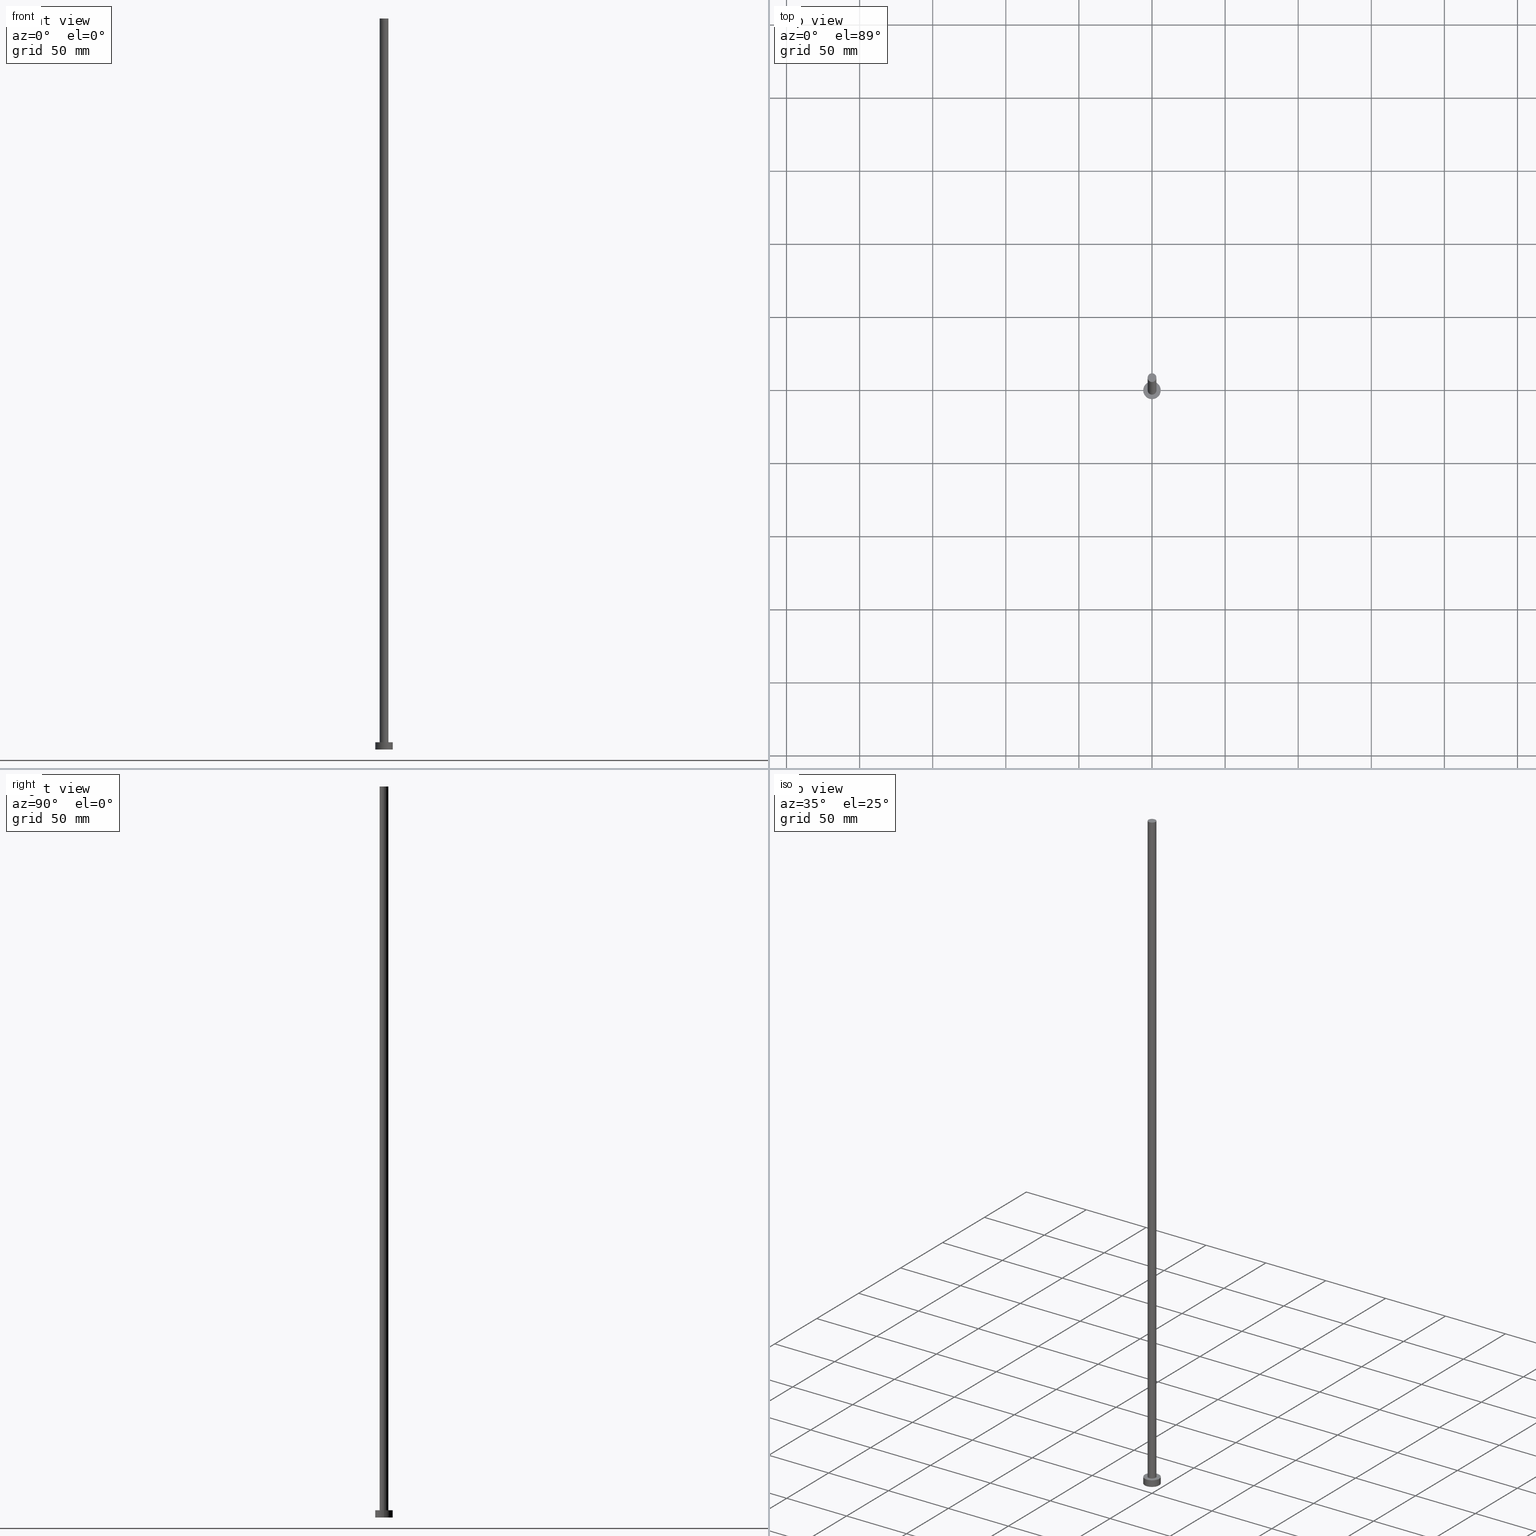
[diagram: canonical four-view strip — front | top / right | iso, engineering-drawing reading convention]
A machine part, canonical four-view strip (front | top / right | iso — engineering-drawing reading convention). The complete STEP part file that produces these views, byte-faithful:
ISO-10303-21;
HEADER;
FILE_DESCRIPTION (( 'STEP AP203' ),
    '1' );
FILE_NAME ('1156.STEP',
    '2023-02-13T15:44:19',
    ( '' ),
    ( '' ),
    'SwSTEP 2.0',
    'SolidWorks 2019',
    '' );
FILE_SCHEMA (( 'CONFIG_CONTROL_DESIGN' ));
ENDSEC;

DATA;
#1 = CLOSED_SHELL ( 'NONE', ( #10, #139, #55, #135, #172, #81, #231 ) ) ;
#2 = PERSON_AND_ORGANIZATION ( #235, #143 ) ;
#3 = PERSON_AND_ORGANIZATION_ROLE ( 'design_supplier' ) ;
#4 = VERTEX_POINT ( 'NONE', #57 ) ;
#5 = CARTESIAN_POINT ( 'NONE',  ( 0.000000000000000000, 0.000000000000000000, 5.000000000000000000 ) ) ;
#6 = FACE_OUTER_BOUND ( 'NONE', #40, .T. ) ;
#7 = AXIS2_PLACEMENT_3D ( 'NONE', #166, #214, #59 ) ;
#8 = ORIENTED_EDGE ( 'NONE', *, *, #72, .T. ) ;
#9 = AXIS2_PLACEMENT_3D ( 'NONE', #97, #31, #77 ) ;
#10 = ADVANCED_FACE ( 'NONE', ( #229 ), #130, .T. ) ;
#11 = DATE_AND_TIME ( #228, #127 ) ;
#12 = CYLINDRICAL_SURFACE ( 'NONE', #61, 6.000000000000000888 ) ;
#13 = CC_DESIGN_SECURITY_CLASSIFICATION ( #240, ( #27 ) ) ;
#14 = EDGE_CURVE ( 'NONE', #4, #248, #201, .T. ) ;
#15 = APPROVAL_STATUS ( 'not_yet_approved' ) ;
#16 = CARTESIAN_POINT ( 'NONE',  ( 0.000000000000000000, 0.000000000000000000, 500.0000000000000000 ) ) ;
#17 = COORDINATED_UNIVERSAL_TIME_OFFSET ( 1, 0, .AHEAD. ) ;
#18 = CC_DESIGN_DATE_AND_TIME_ASSIGNMENT ( #83, #164, ( #240 ) ) ;
#19 = AXIS2_PLACEMENT_3D ( 'NONE', #5, #117, #180 ) ;
#20 = SECURITY_CLASSIFICATION_LEVEL ( 'unclassified' ) ;
#21 = DIRECTION ( 'NONE',  ( -0.000000000000000000, -0.000000000000000000, -1.000000000000000000 ) ) ;
#22 = CARTESIAN_POINT ( 'NONE',  ( 0.000000000000000000, 0.000000000000000000, 5.000000000000000000 ) ) ;
#23 = MANIFOLD_SOLID_BREP ( 'P�idat vysunut�m3', #1 ) ;
#24 = APPROVAL_PERSON_ORGANIZATION ( #146, #87, #254 ) ;
#25 = DIRECTION ( 'NONE',  ( 0.000000000000000000, 0.000000000000000000, 1.000000000000000000 ) ) ;
#26 = ORIENTED_EDGE ( 'NONE', *, *, #230, .F. ) ;
#27 = PRODUCT_DEFINITION_FORMATION_WITH_SPECIFIED_SOURCE ( 'LIBOVOLN�', '', #236, .NOT_KNOWN. ) ;
#28 = APPLICATION_CONTEXT ( 'configuration controlled 3d designs of mechanical parts and assemblies' ) ;
#29 = AXIS2_PLACEMENT_3D ( 'NONE', #22, #199, #220 ) ;
#30 = APPROVAL_DATE_TIME ( #185, #249 ) ;
#31 = DIRECTION ( 'NONE',  ( 0.000000000000000000, 0.000000000000000000, 1.000000000000000000 ) ) ;
#32 = COORDINATED_UNIVERSAL_TIME_OFFSET ( 1, 0, .AHEAD. ) ;
#33 = APPROVAL_ROLE ( '' ) ;
#34 = ORIENTED_EDGE ( 'NONE', *, *, #49, .T. ) ;
#35 = DATE_TIME_ROLE ( 'creation_date' ) ;
#36 = EDGE_CURVE ( 'NONE', #207, #227, #147, .T. ) ;
#37 = ORIENTED_EDGE ( 'NONE', *, *, #107, .T. ) ;
#38 = APPROVAL_STATUS ( 'not_yet_approved' ) ;
#39 = AXIS2_PLACEMENT_3D ( 'NONE', #243, #65, #131 ) ;
#40 = EDGE_LOOP ( 'NONE', ( #140, #202, #93, #184 ) ) ;
#41 = CARTESIAN_POINT ( 'NONE',  ( -3.000000000000000444, 0.000000000000000000, 5.000000000000000000 ) ) ;
#42 = PRODUCT_DEFINITION_SHAPE ( 'NONE', 'NONE',  #89 ) ;
#43 = ORIENTED_EDGE ( 'NONE', *, *, #154, .T. ) ;
#44 = DIRECTION ( 'NONE',  ( -0.000000000000000000, -0.000000000000000000, -1.000000000000000000 ) ) ;
#45 = CARTESIAN_POINT ( 'NONE',  ( 3.000000000000000444, 3.673940397442060361E-16, 5.000000000000000000 ) ) ;
#46 = DESIGN_CONTEXT ( 'detailed design', #28, 'design' ) ;
#47 = AXIS2_PLACEMENT_3D ( 'NONE', #122, #157, #211 ) ;
#48 = DIRECTION ( 'NONE',  ( -0.000000000000000000, -0.000000000000000000, -1.000000000000000000 ) ) ;
#49 = EDGE_CURVE ( 'NONE', #244, #144, #173, .T. ) ;
#50 = ORIENTED_EDGE ( 'NONE', *, *, #200, .T. ) ;
#51 = APPROVAL_STATUS ( 'not_yet_approved' ) ;
#52 =( LENGTH_UNIT ( ) NAMED_UNIT ( * ) SI_UNIT ( .MILLI., .METRE. ) );
#53 = APPROVAL_DATE_TIME ( #79, #87 ) ;
#54 = LOCAL_TIME ( 16, 44, 19.00000000000000000, #58 ) ;
#55 = ADVANCED_FACE ( 'NONE', ( #222 ), #12, .T. ) ;
#56 = ORIENTED_EDGE ( 'NONE', *, *, #14, .T. ) ;
#57 = CARTESIAN_POINT ( 'NONE',  ( 6.000000000000000888, 7.347880794884120722E-16, 5.000000000000000000 ) ) ;
#58 = COORDINATED_UNIVERSAL_TIME_OFFSET ( 1, 0, .AHEAD. ) ;
#59 = DIRECTION ( 'NONE',  ( 1.000000000000000000, 0.000000000000000000, -0.000000000000000000 ) ) ;
#60 = FACE_BOUND ( 'NONE', #88, .T. ) ;
#61 = AXIS2_PLACEMENT_3D ( 'NONE', #208, #48, #99 ) ;
#62 = EDGE_LOOP ( 'NONE', ( #111, #50, #213, #198 ) ) ;
#63 = CIRCLE ( 'NONE', #223, 6.000000000000000888 ) ;
#64 = DIRECTION ( 'NONE',  ( 0.000000000000000000, 0.000000000000000000, 1.000000000000000000 ) ) ;
#65 = DIRECTION ( 'NONE',  ( -0.000000000000000000, -0.000000000000000000, -1.000000000000000000 ) ) ;
#66 = EDGE_CURVE ( 'NONE', #182, #144, #221, .T. ) ;
#67 = CYLINDRICAL_SURFACE ( 'NONE', #86, 3.000000000000000444 ) ;
#68 = VECTOR ( 'NONE', #44, 1000.000000000000000 ) ;
#69 = APPROVAL ( #38, 'NEUR�EN�' ) ;
#70 = DIRECTION ( 'NONE',  ( 1.000000000000000000, 0.000000000000000000, 0.000000000000000000 ) ) ;
#71 = EDGE_LOOP ( 'NONE', ( #163, #152, #170, #8 ) ) ;
#72 = EDGE_CURVE ( 'NONE', #227, #207, #242, .T. ) ;
#73 =( GEOMETRIC_REPRESENTATION_CONTEXT ( 3 ) GLOBAL_UNCERTAINTY_ASSIGNED_CONTEXT ( ( #158 ) ) GLOBAL_UNIT_ASSIGNED_CONTEXT ( ( #52, #124, #103 ) ) REPRESENTATION_CONTEXT ( 'NONE', 'WORKASPACE' ) );
#74 = DIRECTION ( 'NONE',  ( 0.000000000000000000, 0.000000000000000000, 1.000000000000000000 ) ) ;
#75 = CARTESIAN_POINT ( 'NONE',  ( 0.000000000000000000, 0.000000000000000000, 500.0000000000000000 ) ) ;
#76 = CALENDAR_DATE ( 2023, 13, 2 ) ;
#77 = DIRECTION ( 'NONE',  ( 1.000000000000000000, 0.000000000000000000, 0.000000000000000000 ) ) ;
#78 = DIRECTION ( 'NONE',  ( 1.000000000000000000, 0.000000000000000000, -0.000000000000000000 ) ) ;
#79 = DATE_AND_TIME ( #106, #54 ) ;
#80 = ADVANCED_BREP_SHAPE_REPRESENTATION ( '1156', ( #23, #9 ), #73 ) ;
#81 = ADVANCED_FACE ( 'NONE', ( #6 ), #67, .T. ) ;
#82 = DIRECTION ( 'NONE',  ( 0.000000000000000000, 0.000000000000000000, 1.000000000000000000 ) ) ;
#83 = DATE_AND_TIME ( #190, #159 ) ;
#84 = EDGE_LOOP ( 'NONE', ( #193, #34, #186, #245 ) ) ;
#85 = CARTESIAN_POINT ( 'NONE',  ( 3.000000000000000444, 3.673940397442060361E-16, 500.0000000000000000 ) ) ;
#86 = AXIS2_PLACEMENT_3D ( 'NONE', #246, #203, #133 ) ;
#87 = APPROVAL ( #15, 'NEUR�EN�' ) ;
#88 = EDGE_LOOP ( 'NONE', ( #100, #26 ) ) ;
#89 = PRODUCT_DEFINITION ( 'NEZN�M�', '', #27, #46 ) ;
#90 = ORIENTED_EDGE ( 'NONE', *, *, #36, .F. ) ;
#91 = DIRECTION ( 'NONE',  ( 0.000000000000000000, 0.000000000000000000, 1.000000000000000000 ) ) ;
#92 = DIRECTION ( 'NONE',  ( 1.000000000000000000, 0.000000000000000000, 0.000000000000000000 ) ) ;
#93 = ORIENTED_EDGE ( 'NONE', *, *, #119, .T. ) ;
#94 = CALENDAR_DATE ( 2023, 13, 2 ) ;
#95 = PERSON_AND_ORGANIZATION ( #235, #143 ) ;
#96 = CIRCLE ( 'NONE', #216, 3.000000000000000444 ) ;
#97 = CARTESIAN_POINT ( 'NONE',  ( 0.000000000000000000, 0.000000000000000000, 0.000000000000000000 ) ) ;
#98 = AXIS2_PLACEMENT_3D ( 'NONE', #206, #187, #78 ) ;
#99 = DIRECTION ( 'NONE',  ( -1.000000000000000000, 0.000000000000000000, 0.000000000000000000 ) ) ;
#100 = ORIENTED_EDGE ( 'NONE', *, *, #66, .F. ) ;
#101 = APPLICATION_PROTOCOL_DEFINITION ( 'international standard', 'config_control_design', 1994, #28 ) ;
#102 = CC_DESIGN_PERSON_AND_ORGANIZATION_ASSIGNMENT ( #212, #183, ( #240 ) ) ;
#103 =( NAMED_UNIT ( * ) SI_UNIT ( $, .STERADIAN. ) SOLID_ANGLE_UNIT ( ) );
#104 = PERSON_AND_ORGANIZATION_ROLE ( 'creator' ) ;
#105 = LOCAL_TIME ( 16, 44, 19.00000000000000000, #32 ) ;
#106 = CALENDAR_DATE ( 2023, 13, 2 ) ;
#107 = EDGE_CURVE ( 'NONE', #244, #238, #210, .T. ) ;
#108 = DIRECTION ( 'NONE',  ( -0.000000000000000000, -0.000000000000000000, -1.000000000000000000 ) ) ;
#109 = CARTESIAN_POINT ( 'NONE',  ( 0.000000000000000000, 0.000000000000000000, 0.000000000000000000 ) ) ;
#110 = CARTESIAN_POINT ( 'NONE',  ( 0.000000000000000000, 0.000000000000000000, 5.000000000000000000 ) ) ;
#111 = ORIENTED_EDGE ( 'NONE', *, *, #14, .F. ) ;
#112 = CC_DESIGN_APPROVAL ( #69, ( #27 ) ) ;
#113 = DIRECTION ( 'NONE',  ( 1.000000000000000000, 0.000000000000000000, 0.000000000000000000 ) ) ;
#114 = EDGE_CURVE ( 'NONE', #248, #227, #167, .T. ) ;
#115 = DIRECTION ( 'NONE',  ( 1.000000000000000000, 0.000000000000000000, 0.000000000000000000 ) ) ;
#116 = VECTOR ( 'NONE', #108, 1000.000000000000000 ) ;
#117 = DIRECTION ( 'NONE',  ( 0.000000000000000000, 0.000000000000000000, 1.000000000000000000 ) ) ;
#118 = MECHANICAL_CONTEXT ( 'NONE', #197, 'mechanical' ) ;
#119 = EDGE_CURVE ( 'NONE', #238, #182, #241, .T. ) ;
#120 = FACE_OUTER_BOUND ( 'NONE', #251, .T. ) ;
#121 = AXIS2_PLACEMENT_3D ( 'NONE', #168, #64, #70 ) ;
#122 = CARTESIAN_POINT ( 'NONE',  ( 0.000000000000000000, 0.000000000000000000, 5.000000000000000000 ) ) ;
#123 = APPROVAL_DATE_TIME ( #11, #69 ) ;
#124 =( NAMED_UNIT ( * ) PLANE_ANGLE_UNIT ( ) SI_UNIT ( $, .RADIAN. ) );
#125 = PERSON_AND_ORGANIZATION ( #235, #143 ) ;
#126 = PERSON_AND_ORGANIZATION ( #235, #143 ) ;
#127 = LOCAL_TIME ( 16, 44, 19.00000000000000000, #194 ) ;
#128 = CARTESIAN_POINT ( 'NONE',  ( -3.000000000000000444, 0.000000000000000000, 500.0000000000000000 ) ) ;
#129 = FACE_OUTER_BOUND ( 'NONE', #234, .T. ) ;
#130 = CYLINDRICAL_SURFACE ( 'NONE', #39, 3.000000000000000444 ) ;
#131 = DIRECTION ( 'NONE',  ( -1.000000000000000000, 0.000000000000000000, 0.000000000000000000 ) ) ;
#132 = APPROVAL_PERSON_ORGANIZATION ( #160, #249, #141 ) ;
#133 = DIRECTION ( 'NONE',  ( -1.000000000000000000, 0.000000000000000000, 0.000000000000000000 ) ) ;
#134 = DIRECTION ( 'NONE',  ( 0.000000000000000000, 0.000000000000000000, 1.000000000000000000 ) ) ;
#135 = ADVANCED_FACE ( 'NONE', ( #60, #129 ), #171, .T. ) ;
#136 = APPROVAL_PERSON_ORGANIZATION ( #125, #69, #33 ) ;
#137 = CARTESIAN_POINT ( 'NONE',  ( 6.000000000000000888, 7.347880794884120722E-16, 0.000000000000000000 ) ) ;
#138 = DIRECTION ( 'NONE',  ( -0.000000000000000000, -0.000000000000000000, -1.000000000000000000 ) ) ;
#139 = ADVANCED_FACE ( 'NONE', ( #150 ), #225, .T. ) ;
#140 = ORIENTED_EDGE ( 'NONE', *, *, #49, .F. ) ;
#141 = APPROVAL_ROLE ( '' ) ;
#142 = DATE_AND_TIME ( #76, #218 ) ;
#143 = ORGANIZATION ( 'NEUR�EN�', 'NEUR�EN�', '' ) ;
#144 = VERTEX_POINT ( 'NONE', #45 ) ;
#145 = PERSON_AND_ORGANIZATION_ROLE ( 'design_owner' ) ;
#146 = PERSON_AND_ORGANIZATION ( #235, #143 ) ;
#147 = CIRCLE ( 'NONE', #181, 6.000000000000000888 ) ;
#148 = CIRCLE ( 'NONE', #237, 3.000000000000000444 ) ;
#149 = CARTESIAN_POINT ( 'NONE',  ( 0.000000000000000000, 0.000000000000000000, 0.000000000000000000 ) ) ;
#150 = FACE_OUTER_BOUND ( 'NONE', #62, .T. ) ;
#151 = APPLICATION_PROTOCOL_DEFINITION ( 'international standard', 'config_control_design', 1994, #197 ) ;
#152 = ORIENTED_EDGE ( 'NONE', *, *, #154, .F. ) ;
#153 = EDGE_LOOP ( 'NONE', ( #250, #90 ) ) ;
#154 = EDGE_CURVE ( 'NONE', #248, #4, #63, .T. ) ;
#155 = CARTESIAN_POINT ( 'NONE',  ( 0.000000000000000000, 0.000000000000000000, 5.000000000000000000 ) ) ;
#156 = DIRECTION ( 'NONE',  ( 0.000000000000000000, 0.000000000000000000, 1.000000000000000000 ) ) ;
#157 = DIRECTION ( 'NONE',  ( -0.000000000000000000, -0.000000000000000000, -1.000000000000000000 ) ) ;
#158 = UNCERTAINTY_MEASURE_WITH_UNIT (LENGTH_MEASURE( 1.000000000000000082E-05 ), #52, 'distance_accuracy_value', 'NONE');
#159 = LOCAL_TIME ( 16, 44, 19.00000000000000000, #17 ) ;
#160 = PERSON_AND_ORGANIZATION ( #235, #143 ) ;
#161 = COORDINATED_UNIVERSAL_TIME_OFFSET ( 1, 0, .AHEAD. ) ;
#162 = CC_DESIGN_APPROVAL ( #249, ( #240 ) ) ;
#163 = ORIENTED_EDGE ( 'NONE', *, *, #200, .F. ) ;
#164 = DATE_TIME_ROLE ( 'classification_date' ) ;
#165 = CC_DESIGN_DATE_AND_TIME_ASSIGNMENT ( #142, #35, ( #89 ) ) ;
#166 = CARTESIAN_POINT ( 'NONE',  ( 0.000000000000000000, 0.000000000000000000, 0.000000000000000000 ) ) ;
#167 = LINE ( 'NONE', #215, #217 ) ;
#168 = CARTESIAN_POINT ( 'NONE',  ( 0.000000000000000000, 0.000000000000000000, 5.000000000000000000 ) ) ;
#169 = CC_DESIGN_PERSON_AND_ORGANIZATION_ASSIGNMENT ( #188, #104, ( #27 ) ) ;
#170 = ORIENTED_EDGE ( 'NONE', *, *, #114, .T. ) ;
#171 = PLANE ( 'NONE',  #19 ) ;
#172 = ADVANCED_FACE ( 'NONE', ( #189 ), #191, .F. ) ;
#173 = LINE ( 'NONE', #247, #68 ) ;
#174 = AXIS2_PLACEMENT_3D ( 'NONE', #149, #25, #232 ) ;
#175 = SHAPE_DEFINITION_REPRESENTATION ( #42, #80 ) ;
#176 = CC_DESIGN_PERSON_AND_ORGANIZATION_ASSIGNMENT ( #95, #145, ( #236 ) ) ;
#177 = CARTESIAN_POINT ( 'NONE',  ( -6.000000000000000888, 0.000000000000000000, 5.000000000000000000 ) ) ;
#178 = VECTOR ( 'NONE', #138, 1000.000000000000000 ) ;
#179 = CARTESIAN_POINT ( 'NONE',  ( 6.000000000000000888, 7.347880794884120722E-16, 5.000000000000000000 ) ) ;
#180 = DIRECTION ( 'NONE',  ( 1.000000000000000000, 0.000000000000000000, -0.000000000000000000 ) ) ;
#181 = AXIS2_PLACEMENT_3D ( 'NONE', #109, #91, #92 ) ;
#182 = VERTEX_POINT ( 'NONE', #41 ) ;
#183 = PERSON_AND_ORGANIZATION_ROLE ( 'classification_officer' ) ;
#184 = ORIENTED_EDGE ( 'NONE', *, *, #66, .T. ) ;
#185 = DATE_AND_TIME ( #94, #105 ) ;
#186 = ORIENTED_EDGE ( 'NONE', *, *, #230, .T. ) ;
#187 = DIRECTION ( 'NONE',  ( 0.000000000000000000, 0.000000000000000000, 1.000000000000000000 ) ) ;
#188 = PERSON_AND_ORGANIZATION ( #235, #143 ) ;
#189 = FACE_OUTER_BOUND ( 'NONE', #153, .T. ) ;
#190 = CALENDAR_DATE ( 2023, 13, 2 ) ;
#191 = PLANE ( 'NONE',  #7 ) ;
#192 = CC_DESIGN_APPROVAL ( #87, ( #89 ) ) ;
#193 = ORIENTED_EDGE ( 'NONE', *, *, #107, .F. ) ;
#194 = COORDINATED_UNIVERSAL_TIME_OFFSET ( 1, 0, .AHEAD. ) ;
#195 = CARTESIAN_POINT ( 'NONE',  ( -3.000000000000000444, 0.000000000000000000, 500.0000000000000000 ) ) ;
#196 = PRODUCT_RELATED_PRODUCT_CATEGORY ( 'detail', '', ( #236 ) ) ;
#197 = APPLICATION_CONTEXT ( 'configuration controlled 3d designs of mechanical parts and assemblies' ) ;
#198 = ORIENTED_EDGE ( 'NONE', *, *, #114, .F. ) ;
#199 = DIRECTION ( 'NONE',  ( 0.000000000000000000, 0.000000000000000000, 1.000000000000000000 ) ) ;
#200 = EDGE_CURVE ( 'NONE', #4, #207, #252, .T. ) ;
#201 = CIRCLE ( 'NONE', #29, 6.000000000000000888 ) ;
#202 = ORIENTED_EDGE ( 'NONE', *, *, #239, .F. ) ;
#203 = DIRECTION ( 'NONE',  ( -0.000000000000000000, -0.000000000000000000, -1.000000000000000000 ) ) ;
#204 = CARTESIAN_POINT ( 'NONE',  ( -6.000000000000000888, 0.000000000000000000, 0.000000000000000000 ) ) ;
#205 = CC_DESIGN_PERSON_AND_ORGANIZATION_ASSIGNMENT ( #126, #3, ( #27 ) ) ;
#206 = CARTESIAN_POINT ( 'NONE',  ( 0.000000000000000000, 0.000000000000000000, 500.0000000000000000 ) ) ;
#207 = VERTEX_POINT ( 'NONE', #137 ) ;
#208 = CARTESIAN_POINT ( 'NONE',  ( 0.000000000000000000, 0.000000000000000000, 5.000000000000000000 ) ) ;
#209 = ORIENTED_EDGE ( 'NONE', *, *, #239, .T. ) ;
#210 = CIRCLE ( 'NONE', #233, 3.000000000000000444 ) ;
#211 = DIRECTION ( 'NONE',  ( -1.000000000000000000, 0.000000000000000000, 0.000000000000000000 ) ) ;
#212 = PERSON_AND_ORGANIZATION ( #235, #143 ) ;
#213 = ORIENTED_EDGE ( 'NONE', *, *, #36, .T. ) ;
#214 = DIRECTION ( 'NONE',  ( 0.000000000000000000, 0.000000000000000000, 1.000000000000000000 ) ) ;
#215 = CARTESIAN_POINT ( 'NONE',  ( -6.000000000000000888, 0.000000000000000000, 5.000000000000000000 ) ) ;
#216 = AXIS2_PLACEMENT_3D ( 'NONE', #155, #74, #115 ) ;
#217 = VECTOR ( 'NONE', #21, 1000.000000000000000 ) ;
#218 = LOCAL_TIME ( 16, 44, 19.00000000000000000, #161 ) ;
#219 = DIRECTION ( 'NONE',  ( 1.000000000000000000, 0.000000000000000000, 0.000000000000000000 ) ) ;
#220 = DIRECTION ( 'NONE',  ( 1.000000000000000000, 0.000000000000000000, 0.000000000000000000 ) ) ;
#221 = CIRCLE ( 'NONE', #121, 3.000000000000000444 ) ;
#222 = FACE_OUTER_BOUND ( 'NONE', #71, .T. ) ;
#223 = AXIS2_PLACEMENT_3D ( 'NONE', #110, #134, #113 ) ;
#224 = PLANE ( 'NONE',  #98 ) ;
#225 = CYLINDRICAL_SURFACE ( 'NONE', #47, 6.000000000000000888 ) ;
#226 = PERSON_AND_ORGANIZATION_ROLE ( 'creator' ) ;
#227 = VERTEX_POINT ( 'NONE', #204 ) ;
#228 = CALENDAR_DATE ( 2023, 13, 2 ) ;
#229 = FACE_OUTER_BOUND ( 'NONE', #84, .T. ) ;
#230 = EDGE_CURVE ( 'NONE', #144, #182, #96, .T. ) ;
#231 = ADVANCED_FACE ( 'NONE', ( #120 ), #224, .T. ) ;
#232 = DIRECTION ( 'NONE',  ( 1.000000000000000000, 0.000000000000000000, 0.000000000000000000 ) ) ;
#233 = AXIS2_PLACEMENT_3D ( 'NONE', #75, #156, #255 ) ;
#234 = EDGE_LOOP ( 'NONE', ( #43, #56 ) ) ;
#235 = PERSON ( 'NEUR�EN�', 'NEUR�EN�', 'NEUR�EN�', ('NEUR�EN�'), ('NEUR�EN�'), ('NEUR�EN�') ) ;
#236 = PRODUCT ( '1156', '1156', '', ( #118 ) ) ;
#237 = AXIS2_PLACEMENT_3D ( 'NONE', #16, #82, #219 ) ;
#238 = VERTEX_POINT ( 'NONE', #128 ) ;
#239 = EDGE_CURVE ( 'NONE', #238, #244, #148, .T. ) ;
#240 = SECURITY_CLASSIFICATION ( '', '', #20 ) ;
#241 = LINE ( 'NONE', #195, #116 ) ;
#242 = CIRCLE ( 'NONE', #174, 6.000000000000000888 ) ;
#243 = CARTESIAN_POINT ( 'NONE',  ( 0.000000000000000000, 0.000000000000000000, 500.0000000000000000 ) ) ;
#244 = VERTEX_POINT ( 'NONE', #85 ) ;
#245 = ORIENTED_EDGE ( 'NONE', *, *, #119, .F. ) ;
#246 = CARTESIAN_POINT ( 'NONE',  ( 0.000000000000000000, 0.000000000000000000, 500.0000000000000000 ) ) ;
#247 = CARTESIAN_POINT ( 'NONE',  ( 3.000000000000000444, 3.673940397442060361E-16, 500.0000000000000000 ) ) ;
#248 = VERTEX_POINT ( 'NONE', #177 ) ;
#249 = APPROVAL ( #51, 'NEUR�EN�' ) ;
#250 = ORIENTED_EDGE ( 'NONE', *, *, #72, .F. ) ;
#251 = EDGE_LOOP ( 'NONE', ( #209, #37 ) ) ;
#252 = LINE ( 'NONE', #179, #178 ) ;
#253 = CC_DESIGN_PERSON_AND_ORGANIZATION_ASSIGNMENT ( #2, #226, ( #89 ) ) ;
#254 = APPROVAL_ROLE ( '' ) ;
#255 = DIRECTION ( 'NONE',  ( 1.000000000000000000, 0.000000000000000000, 0.000000000000000000 ) ) ;
ENDSEC;
END-ISO-10303-21;
